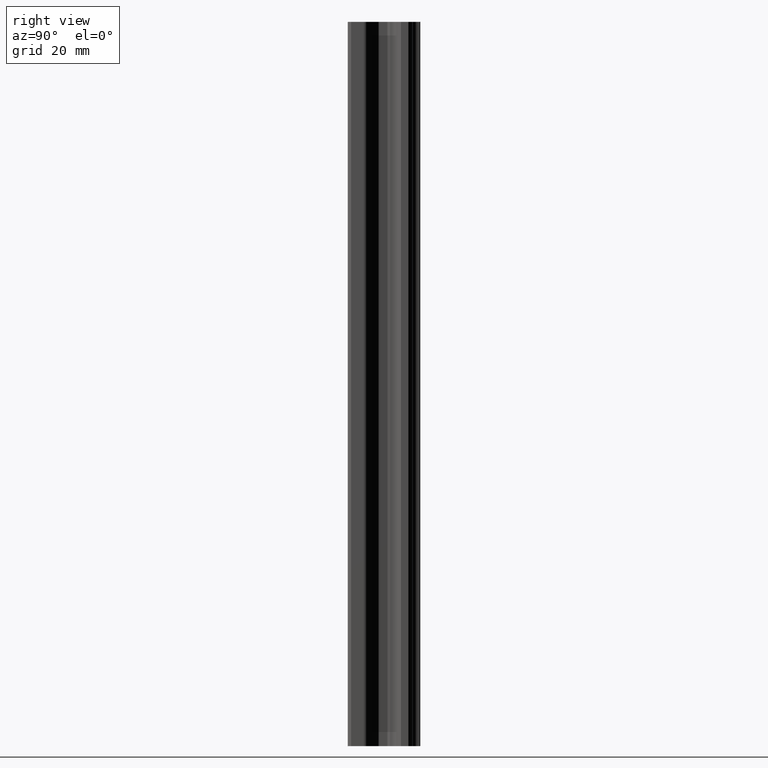
[diagram: clean part render]
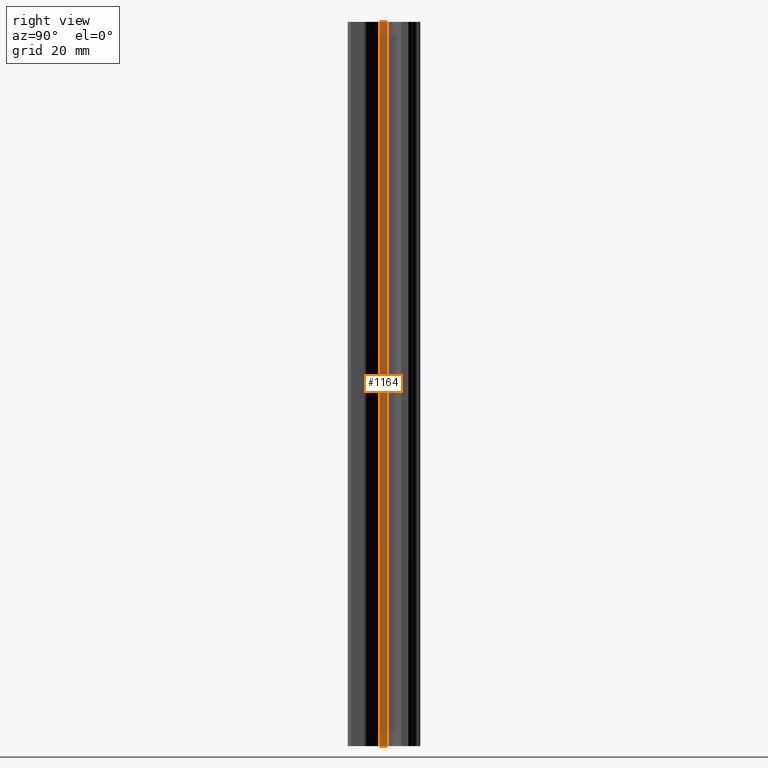
[diagram: same view with one face highlighted and labeled with its STEP entity id]
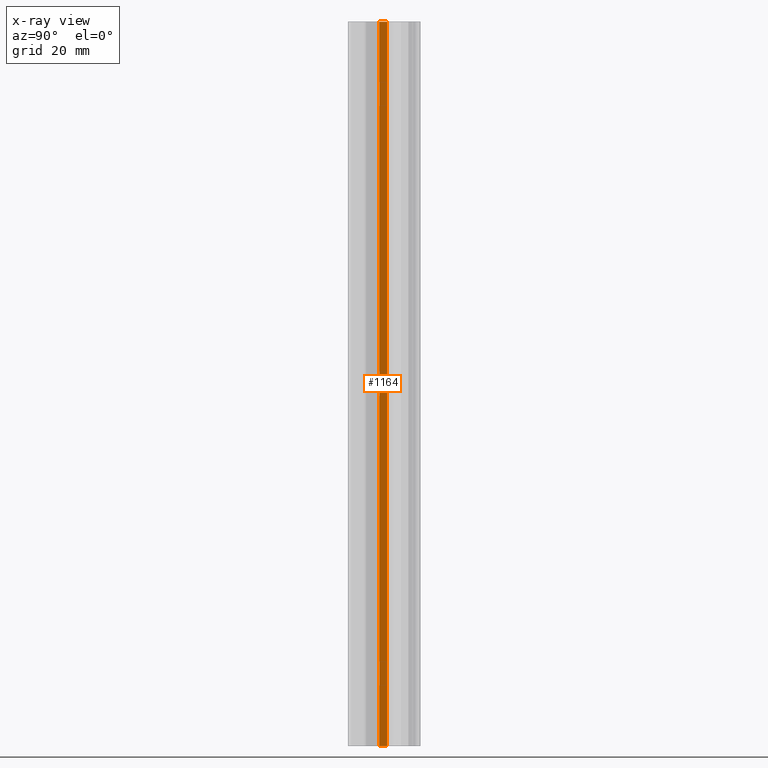
[diagram: x-ray of the same camera — body ghosted, the highlighted face saturated]
A machine part, right view. The second image highlights one B-rep face of the part: STEP entity #1164.
The next image is the same camera in x-ray: the body ghosted, the highlighted face saturated — about 0% of this face is hidden behind the body in this view.
In plain terms, the highlighted planar face has unit normal (1, 0, 0).
Its self-contained STEP definition (entity closure, byte-faithful):
#889 = CARTESIAN_POINT ( 'NONE',  ( 4.769999999999999600, -6.884680373956999900, 75.00000000000000000 ) ) ;
#907 = DIRECTION ( 'NONE',  ( 0.0000000000000000000, 0.0000000000000000000, 1.000000000000000000 ) ) ;
#908 = VECTOR ( 'NONE', #907, 1000.000000000000000 ) ;
#921 = CARTESIAN_POINT ( 'NONE',  ( 4.769999999999999600, -6.884680373956999900, -75.00000000000000000 ) ) ;
#922 = LINE ( 'NONE', #921, #908 ) ;
#1053 = EDGE_CURVE ( 'NONE', #1166, #1060, #922, .T. ) ;
#1060 = VERTEX_POINT ( 'NONE', #889 ) ;
#1140 = EDGE_CURVE ( 'NONE', #1156, #1154, #1246, .T. ) ;
#1146 = EDGE_LOOP ( 'NONE', ( #1171, #1155, #1158, #1186 ) ) ;
#1154 = VERTEX_POINT ( 'NONE', #1260 ) ;
#1155 = ORIENTED_EDGE ( 'NONE', *, *, #1185, .T. ) ;
#1156 = VERTEX_POINT ( 'NONE', #1259 ) ;
#1158 = ORIENTED_EDGE ( 'NONE', *, *, #1053, .T. ) ;
#1160 = EDGE_CURVE ( 'NONE', #1060, #1156, #1257, .T. ) ;
#1164 = ADVANCED_FACE ( 'NONE', ( #1248 ), #1286, .T. ) ;
#1166 = VERTEX_POINT ( 'NONE', #1258 ) ;
#1171 = ORIENTED_EDGE ( 'NONE', *, *, #1140, .T. ) ;
#1185 = EDGE_CURVE ( 'NONE', #1154, #1166, #1329, .T. ) ;
#1186 = ORIENTED_EDGE ( 'NONE', *, *, #1160, .T. ) ;
#1226 = DIRECTION ( 'NONE',  ( 0.0000000000000000000, 0.0000000000000000000, -1.000000000000000000 ) ) ;
#1234 = VECTOR ( 'NONE', #1226, 1000.000000000000000 ) ;
#1235 = CARTESIAN_POINT ( 'NONE',  ( 4.769999999999999600, -8.446740981527000300, -75.00000000000000000 ) ) ;
#1246 = LINE ( 'NONE', #1235, #1234 ) ;
#1248 = FACE_OUTER_BOUND ( 'NONE', #1146, .T. ) ;
#1254 = DIRECTION ( 'NONE',  ( 0.0000000000000000000, -1.000000000000000000, 0.0000000000000000000 ) ) ;
#1255 = VECTOR ( 'NONE', #1254, 1000.000000000000000 ) ;
#1256 = CARTESIAN_POINT ( 'NONE',  ( 4.769999999999999600, -8.446740981527000300, 75.00000000000000000 ) ) ;
#1257 = LINE ( 'NONE', #1256, #1255 ) ;
#1258 = CARTESIAN_POINT ( 'NONE',  ( 4.769999999999999600, -6.884680373956999900, -75.00000000000000000 ) ) ;
#1259 = CARTESIAN_POINT ( 'NONE',  ( 4.769999999999999600, -8.446740981527000300, 75.00000000000000000 ) ) ;
#1260 = CARTESIAN_POINT ( 'NONE',  ( 4.769999999999999600, -8.446740981527000300, -75.00000000000000000 ) ) ;
#1264 = DIRECTION ( 'NONE',  ( 0.0000000000000000000, 0.0000000000000000000, -1.000000000000000000 ) ) ;
#1283 = DIRECTION ( 'NONE',  ( 1.000000000000000000, 0.0000000000000000000, 0.0000000000000000000 ) ) ;
#1284 = CARTESIAN_POINT ( 'NONE',  ( 4.769999999999999600, -8.446740981527000300, -75.00000000000000000 ) ) ;
#1285 = AXIS2_PLACEMENT_3D ( 'NONE', #1284, #1283, #1264 ) ;
#1286 = PLANE ( 'NONE',  #1285 ) ;
#1326 = DIRECTION ( 'NONE',  ( 0.0000000000000000000, 1.000000000000000000, 0.0000000000000000000 ) ) ;
#1327 = VECTOR ( 'NONE', #1326, 1000.000000000000000 ) ;
#1328 = CARTESIAN_POINT ( 'NONE',  ( 4.769999999999999600, -8.446740981527000300, -75.00000000000000000 ) ) ;
#1329 = LINE ( 'NONE', #1328, #1327 ) ;